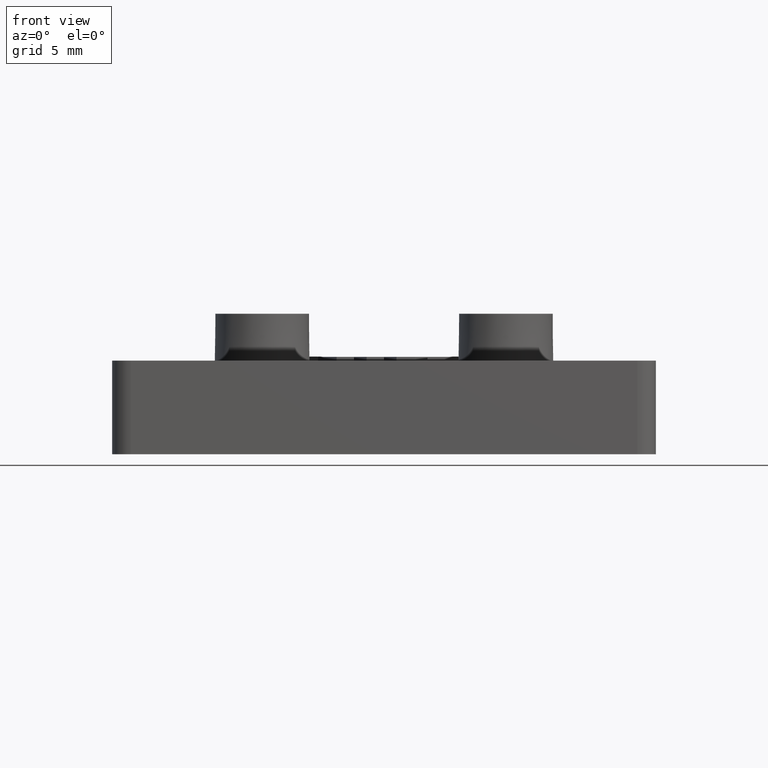
[diagram: clean part render]
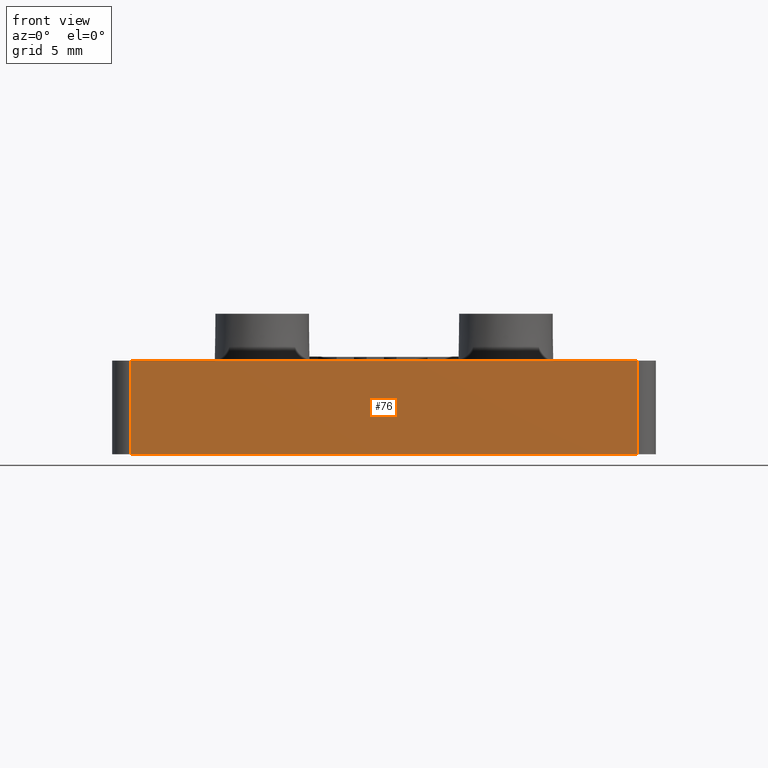
[diagram: same view with one face highlighted and labeled with its STEP entity id]
A machine part, front view. The second image highlights one B-rep face of the part: STEP entity #76.
In plain terms, the highlighted planar face has unit normal (0, 1, -0).
Its self-contained STEP definition (entity closure, byte-faithful):
#76 = ADVANCED_FACE( '', ( #277 ), #278, .F. );
#277 = FACE_OUTER_BOUND( '', #693, .T. );
#278 = PLANE( '', #694 );
#693 = EDGE_LOOP( '', ( #1141, #1142, #1143, #1144 ) );
#694 = AXIS2_PLACEMENT_3D( '', #1145, #1146, #1147 );
#1141 = ORIENTED_EDGE( '', *, *, #2670, .F. );
#1142 = ORIENTED_EDGE( '', *, *, #2671, .T. );
#1143 = ORIENTED_EDGE( '', *, *, #2650, .T. );
#1144 = ORIENTED_EDGE( '', *, *, #2672, .T. );
#1145 = CARTESIAN_POINT( '', ( 25.5000000000000, -12.5000000000000, -6.17351493276824E-015 ) );
#1146 = DIRECTION( '', ( 0.000000000000000, 1.00000000000000, -6.12303176911189E-017 ) );
#1147 = DIRECTION( '', ( 1.00000000000000, 0.000000000000000, 0.000000000000000 ) );
#2650 = EDGE_CURVE( '', #3133, #3145, #3147, .T. );
#2670 = EDGE_CURVE( '', #3186, #3187, #3188, .T. );
#2671 = EDGE_CURVE( '', #3186, #3133, #3189, .T. );
#2672 = EDGE_CURVE( '', #3145, #3187, #3190, .T. );
#3133 = VERTEX_POINT( '', #3942 );
#3145 = VERTEX_POINT( '', #3957 );
#3147 = LINE( '', #3959, #3960 );
#3186 = VERTEX_POINT( '', #4014 );
#3187 = VERTEX_POINT( '', #4015 );
#3188 = LINE( '', #4016, #4017 );
#3189 = LINE( '', #4018, #4019 );
#3190 = LINE( '', #4020, #4021 );
#3942 = CARTESIAN_POINT( '', ( 13.5000000000000, -12.5000000000000, 4.99999999999999 ) );
#3957 = CARTESIAN_POINT( '', ( -13.5000000000000, -12.5000000000000, 4.99999999999999 ) );
#3959 = CARTESIAN_POINT( '', ( 25.5000000000000, -12.5000000000000, 4.99999999999999 ) );
#3960 = VECTOR( '', #5194, 1000.00000000000 );
#4014 = CARTESIAN_POINT( '', ( 13.5000000000000, -12.5000000000000, -6.17351493276824E-015 ) );
#4015 = CARTESIAN_POINT( '', ( -13.5000000000000, -12.5000000000000, -6.17351493276824E-015 ) );
#4016 = CARTESIAN_POINT( '', ( 25.5000000000000, -12.5000000000000, -6.17351493276824E-015 ) );
#4017 = VECTOR( '', #5222, 1000.00000000000 );
#4018 = CARTESIAN_POINT( '', ( 13.5000000000000, -12.5000000000000, -50.5034822749030 ) );
#4019 = VECTOR( '', #5223, 1000.00000000000 );
#4020 = CARTESIAN_POINT( '', ( -13.5000000000000, -12.5000000000000, 69.9532326562203 ) );
#4021 = VECTOR( '', #5224, 1000.00000000000 );
#5194 = DIRECTION( '', ( -1.00000000000000, 0.000000000000000, 0.000000000000000 ) );
#5222 = DIRECTION( '', ( -1.00000000000000, 0.000000000000000, 0.000000000000000 ) );
#5223 = DIRECTION( '', ( 1.49519739311857E-016, 2.33178017899756E-016, 1.00000000000000 ) );
#5224 = DIRECTION( '', ( 1.49519739311858E-016, -2.33178017899756E-016, -1.00000000000000 ) );